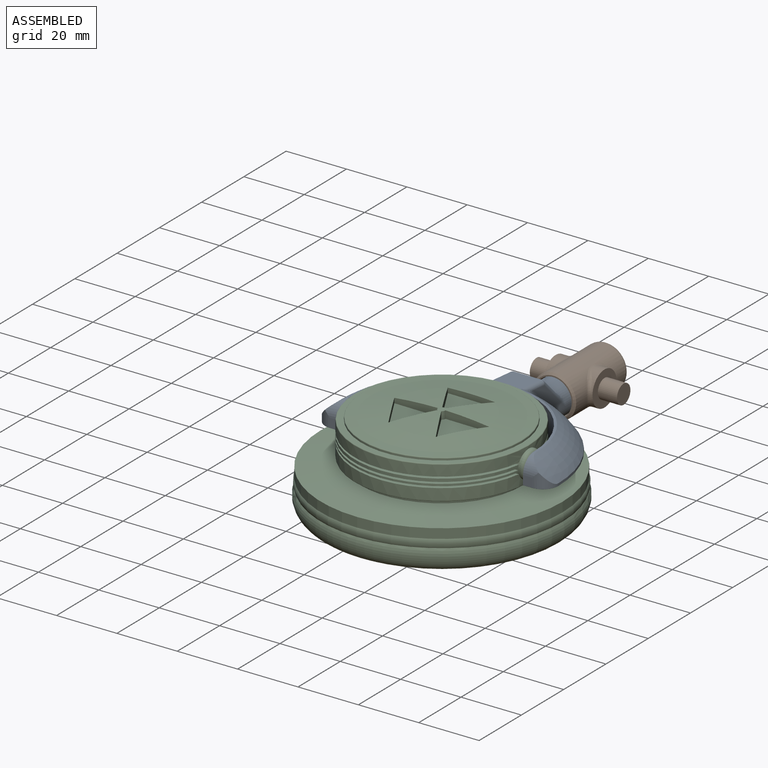
[diagram: assembled view]
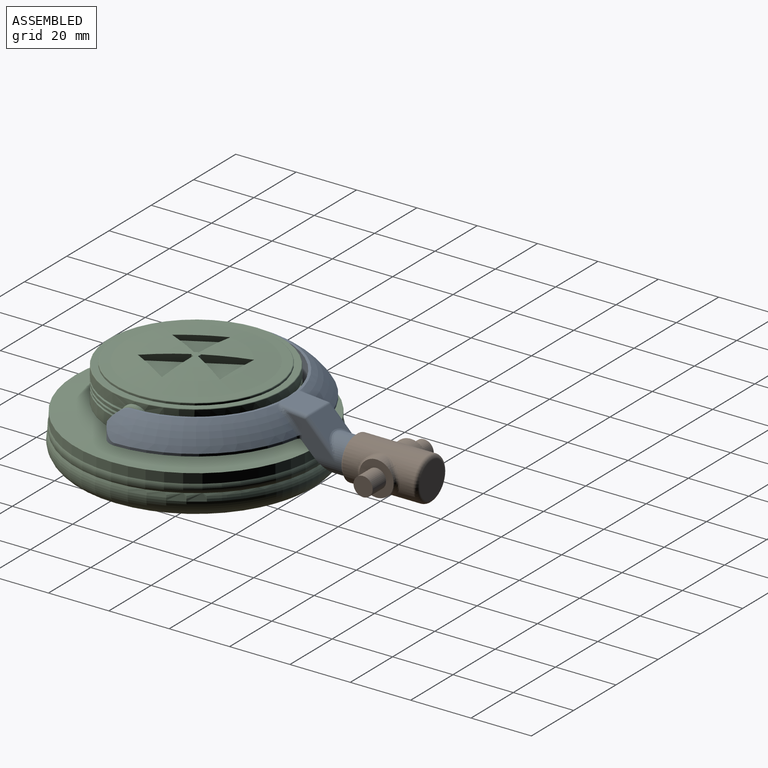
[diagram: assembled view, second angle]
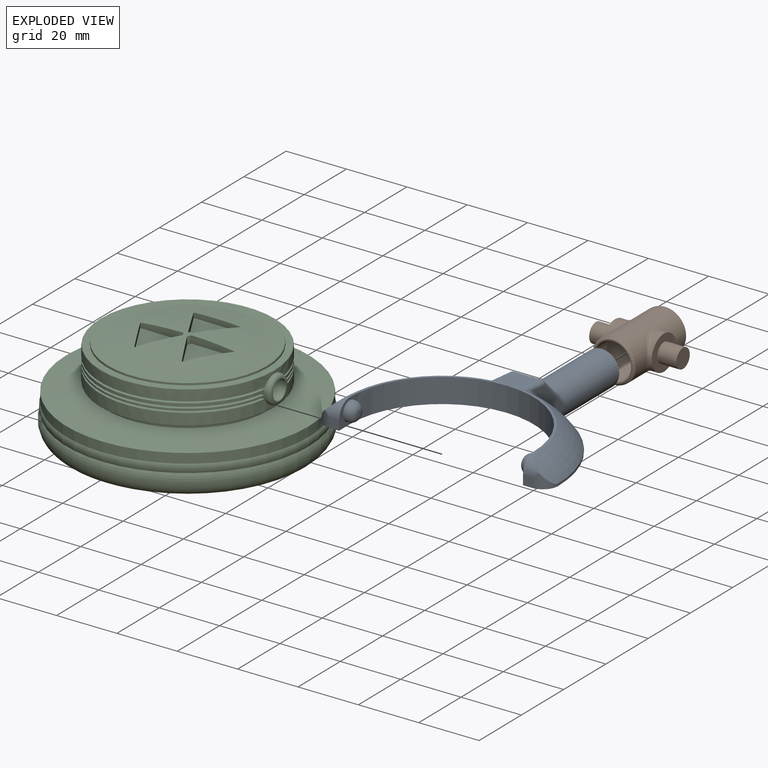
[diagram: exploded view]
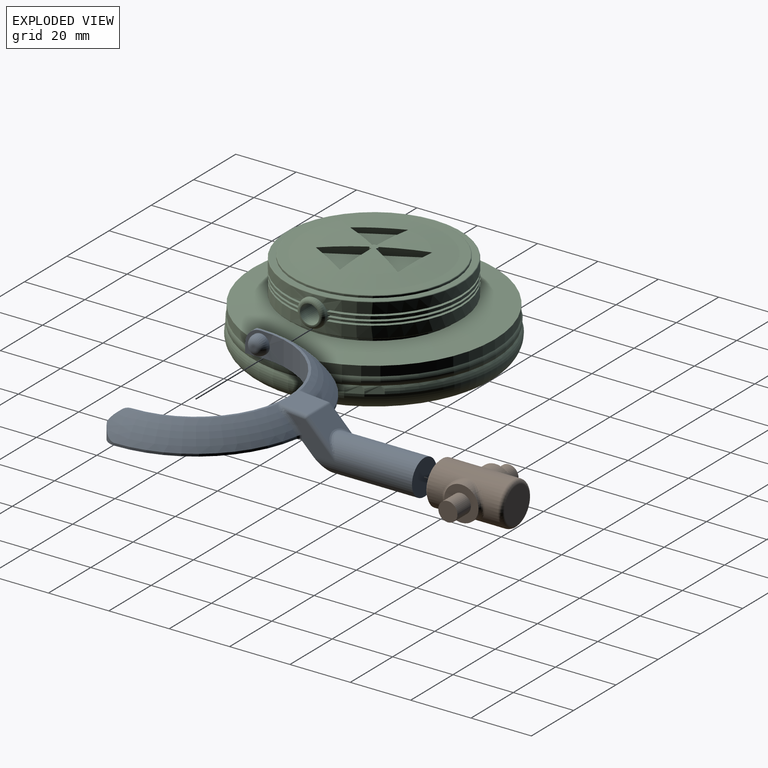
[diagram: exploded view, second angle]
ASSEMBLY  parts=3 mates=2
PART A: 48 faces, bbox 77.3x80.8x18.2 mm
  f0: plane 11.99x9.83mm, normal (0,-0.71,-0.71), area 141.5mm2, adj f1,f2,f9,f30,f43,f46
  f1: plane 15.39x10.49mm, normal (-1,0,0), area 63.5mm2, adj f0,f30,f32,f36,f46,f47
  f2: plane 15.39x10.49mm, normal (1,0,0), area 63.5mm2, adj f0,f30,f34,f39,f43,f44
  f3: plane 9.14x6.37mm, normal (0,0.71,0.71), area 67.6mm2, adj f35,f36,f39,f40
  f4: cylinder r=38.61mm len=37.99mm, axis (0,0,-1), area 42.6mm2, adj f6,f9,f17,f46,f47
  f5: torus R=19.3mm, axis (0,0,-1), area 507.8mm2, adj f10,f11,f12,f29,f42,f44
  f6: torus R=19.3mm, axis (0,0,-1), area 507.8mm2, adj f4,f11,f15,f28,f45,f47
  f7: cylinder r=30.48mm len=60.96mm, axis (0,0,-1), area 746.6mm2, adj f8,f9,f11,f14,f21,f24
  f8: plane 8.13x5.08mm, normal (-1,0,0), area 19.9mm2, adj f7,f9,f13,f19,f24
  f9: plane 77.22x43.73mm, normal (0,0,-1), area 956.2mm2, adj f0,f4,f7,f8,f10,f13,f14,f16
  f10: cylinder r=38.61mm len=37.99mm, axis (0,0,-1), area 42.6mm2, adj f5,f9,f20,f43,f44
  f11: plane 62.55x30.95mm, normal (0,0,1), area 75mm2, adj f5,f6,f7,f18,f19,f27
  f12: cylinder r=22.71mm len=7.33mm, axis (0,1,0), area 24.8mm2, adj f5,f19,f20
  f13: plane 3.05x3.05mm, normal (0,-1,0), area 9.3mm2, adj f8,f9,f19,f20
  f14: plane 8.13x5.08mm, normal (1,0,0), area 19.9mm2, adj f7,f9,f16,f18,f21
  f15: cylinder r=22.71mm len=7.33mm, axis (0,1,0), area 24.8mm2, adj f6,f17,f18
  f16: plane 3.05x3.05mm, normal (0,-1,0), area 9.3mm2, adj f9,f14,f17,f18
  f17: cylinder r=5.08mm len=5.08mm, axis (0,0,-1), area 21.9mm2, adj f4,f9,f15,f16,f18
  f18: cylinder r=5.08mm len=5.08mm, axis (-1,0,0), area 21.9mm2, adj f11,f14,f15,f16,f17
  f19: cylinder r=5.08mm len=5.08mm, axis (-1,0,0), area 21.9mm2, adj f8,f11,f12,f13,f20
  f20: cylinder r=5.08mm len=5.08mm, axis (0,0,-1), area 21.9mm2, adj f9,f10,f12,f13,f19
  f21: cylinder r=3.17mm len=6.35mm, axis (-1,0,0), area 12.7mm2, adj f7,f14,f23
  f22: plane 1.27x1.27mm, normal (1,0,0), area 1.3mm2, adj f23
  f23: torus R=0.64mm, axis (1,0,0), area 56.5mm2, adj f21,f22
  f24: cylinder r=3.17mm len=6.35mm, axis (1,0,0), area 12.7mm2, adj f7,f8,f26
  f25: plane 1.27x1.27mm, normal (-1,0,0), area 1.3mm2, adj f26
  f26: torus R=0.64mm, axis (-1,0,0), area 56.5mm2, adj f24,f25
  f27: plane 9.86x9.36mm, normal (0,0.09,1), area 85.6mm2, adj f11,f28,f29,f32,f34,f35,f42,f45
  f28: plane 1.04x0.17mm, normal (0,-1,0), area 0mm2, adj f6,f27,f45
  f29: plane 1.04x0.17mm, normal (0,-1,0), area 0mm2, adj f5,f27,f42
  f30: cylinder r=5.84mm len=33.01mm, axis (0,-1,0), area 1029.7mm2, adj f0,f1,f2,f31,f38,f40,f41
  f31: plane 11.68x11.68mm, normal (0,1,0), area 107.2mm2, adj f30
  f32: cylinder r=1.27mm len=9.13mm, axis (0,-1,0.09), area 14.4mm2, adj f1,f27,f33,f45
  f33: sphere r=1.27mm, area 1.5mm2, adj f32,f35,f36
  f34: cylinder r=1.27mm len=9.13mm, axis (0,1,-0.09), area 14.4mm2, adj f2,f27,f37,f42
  f35: cylinder r=1.27mm len=9.14mm, axis (-1,0,0), area 8.1mm2, adj f3,f27,f33,f37
  f36: cylinder r=1.27mm len=10.91mm, axis (0,-0.71,0.71), area 23.1mm2, adj f1,f3,f33,f38
  f37: sphere r=1.27mm, area 1.5mm2, adj f34,f35,f39
  f38: bspline ~4.55x2.75mm, area 2.3mm2, adj f30,f36,f40
  f39: cylinder r=1.27mm len=10.91mm, axis (0,0.71,-0.71), area 23.1mm2, adj f2,f3,f37,f41
  f40: bspline ~9.14x2.56mm, area 10.7mm2, adj f3,f30,f38,f41
  f41: bspline ~5.23x3.53mm, area 2.3mm2, adj f30,f39,f40
  f42: bspline ~4.62x3.14mm, area 5.2mm2, adj f5,f27,f29,f34,f44
  f43: cylinder r=1.27mm len=1.74mm, axis (0,0,-1), area 1.9mm2, adj f0,f2,f9,f10,f44
  f44: bspline ~8.6x7.86mm, area 11.9mm2, adj f2,f5,f10,f42,f43
  f45: bspline ~4.62x3.14mm, area 5.2mm2, adj f6,f27,f28,f32,f47
  f46: cylinder r=1.27mm len=1.74mm, axis (0,0,-1), area 1.9mm2, adj f0,f1,f4,f9,f47
  f47: bspline ~8.6x7.86mm, area 11.9mm2, adj f1,f4,f6,f45,f46
PART B: 25 faces, bbox 28.9x15.5x25.4 mm
  f0: cylinder r=5.71mm len=10.81mm, axis (-1,0,0), area 26.2mm2, adj f5,f15
  f1: cylinder r=5.71mm len=10.81mm, axis (-1,0,0), area 26.2mm2, adj f8,f11
  f2: cylinder r=7.14mm len=23.5mm, axis (0,0,-1), area 763.2mm2, adj f9,f10,f11,f12,f13,f14,f15,f16
  f3: plane 11.75x11.75mm, normal (0,0,1), area 108.4mm2, adj f17
  f4: plane 13.02x13.02mm, normal (0,0,-1), area 16.3mm2, adj f22,f24
  f5: plane 11.46x11.46mm, normal (1,0,0), area 70.9mm2, adj f0,f6,f13,f16,f18
  f6: cylinder r=5.71mm len=10.81mm, axis (-1,0,0), area 26.2mm2, adj f5,f14
  f7: cylinder r=5.71mm len=10.81mm, axis (-1,0,0), area 26.2mm2, adj f8,f10
  f8: plane 11.46x11.46mm, normal (-1,0,0), area 70.9mm2, adj f1,f7,f9,f12,f20
  f9: bspline ~4.64x1.73mm, area 6.5mm2, adj f2,f8,f10,f11
  f10: bspline ~13.62x4.91mm, area 20.7mm2, adj f2,f7,f9,f12
  f11: bspline ~13.6x4.87mm, area 20.7mm2, adj f1,f2,f9,f12
  f12: bspline ~4.64x1.73mm, area 6.5mm2, adj f2,f8,f10,f11
  f13: bspline ~4.64x1.73mm, area 6.5mm2, adj f2,f5,f14,f15
  f14: bspline ~13.62x4.91mm, area 20.7mm2, adj f2,f6,f13,f16
  f15: bspline ~13.6x4.87mm, area 20.7mm2, adj f0,f2,f13,f16
  f16: bspline ~4.64x1.73mm, area 6.5mm2, adj f2,f5,f14,f15
  f17: torus R=5.87mm, axis (0,0,1), area 83.8mm2, adj f2,f3
  f18: cylinder r=3.17mm len=6.35mm, axis (-1,0,0), area 126.7mm2, adj f5,f19
  f19: plane 6.35x6.35mm, normal (1,0,0), area 31.7mm2, adj f18
  f20: cylinder r=3.17mm len=6.35mm, axis (1,0,0), area 126.7mm2, adj f8,f21
  f21: plane 6.35x6.35mm, normal (-1,0,0), area 31.7mm2, adj f20
  f22: cylinder r=6.1mm len=22.86mm, axis (0,0,-1), area 875.6mm2, adj f4,f23
  f23: plane 12.19x12.19mm, normal (0,0,-1), area 116.7mm2, adj f22
  f24: cone r=7.14mm half-angle=45deg, axis (0,0,1), area 38.5mm2, adj f2,f4
PART C: 63 faces, bbox 96.3x96.3x32.5 mm
  f0: cylinder r=28.87mm len=57.73mm, axis (0,0,-1), area 629.2mm2, adj f3,f4,f53,f54,f59
  f1: plane 57.15x24.45mm, normal (0,0,-1), area 101.2mm2, adj f6,f8,f53,f54
  f2: plane 57.15x24.45mm, normal (0,0,-1), area 101.3mm2, adj f5,f7,f53,f54
  f3: plane 57.1x24.58mm, normal (0,0,1), area 101.9mm2, adj f0,f6,f53,f54
  f4: plane 57.1x24.58mm, normal (0,0,1), area 101.9mm2, adj f0,f5,f53,f54
  f5: cone r=27.6mm half-angle=0.2deg, axis (0,0,1), area 49.5mm2, adj f2,f4,f53,f54
  f6: cone r=27.6mm half-angle=0.2deg, axis (0,0,1), area 49.5mm2, adj f1,f3,f53,f54
  f7: cylinder r=28.87mm len=57.04mm, axis (0,0,-1), area 51.8mm2, adj f2,f14,f53,f54
  f8: cylinder r=28.87mm len=57.04mm, axis (0,0,-1), area 51.8mm2, adj f1,f13,f53,f54
  f9: cylinder r=27.6mm len=54.44mm, axis (0,0,-1), area 49.2mm2, adj f12,f14,f53,f54
  f10: cylinder r=27.6mm len=54.44mm, axis (0,0,-1), area 49.2mm2, adj f11,f13,f53,f54
  f11: plane 57.12x24.36mm, normal (0,0,-1), area 101mm2, adj f10,f16,f53,f54
  f12: plane 57.12x24.36mm, normal (0,0,-1), area 101mm2, adj f9,f15,f53,f54
  f13: plane 57.01x24.31mm, normal (0,0,1), area 101mm2, adj f8,f10,f53,f54
  f14: plane 57.02x24.31mm, normal (0,0,1), area 101mm2, adj f7,f9,f53,f54
  f15: cylinder r=28.87mm len=57.06mm, axis (0,0,-1), area 77.8mm2, adj f12,f20,f53,f54
  f16: cylinder r=28.87mm len=57.06mm, axis (0,0,-1), area 77.8mm2, adj f11,f19,f53,f54
  f17: plane 57.24x24.77mm, normal (0,0,-1), area 101.4mm2, adj f22,f23,f53,f54
  f18: plane 57.24x24.77mm, normal (0,0,-1), area 101.4mm2, adj f21,f23,f53,f54
  f19: plane 57.07x24.48mm, normal (0,0,1), area 101.4mm2, adj f16,f22,f53,f54
  f20: plane 57.07x24.48mm, normal (0,0,1), area 101.4mm2, adj f15,f21,f53,f54
  f21: cone r=27.61mm half-angle=0.6deg, axis (0,0,1), area 49.6mm2, adj f18,f20,f53,f54
  f22: cone r=27.61mm half-angle=0.6deg, axis (0,0,1), area 49.6mm2, adj f17,f19,f53,f54
  f23: cylinder r=28.87mm len=57.73mm, axis (0,0,-1), area 595.9mm2, adj f17,f18,f53,f54,f60
  f24: sphere r=135.39mm, area 1385.3mm2, adj f37,f38,f39,f40,f42,f43,f44,f45
  f25: plane 39.33x39.33mm, normal (0,0,-1), area 1214.6mm2, adj f26
  f26: torus R=20.12mm, axis (0,0,-1), area 1429.3mm2, adj f25,f27
  f27: torus R=27.74mm, axis (0,0,-1), area 3542.1mm2, adj f26,f28
  f28: torus R=35.36mm, axis (0,0,-1), area 2180.1mm2, adj f27,f29
  f29: torus R=37.35mm, axis (0,0,-1), area 734.6mm2, adj f28,f30
  f30: cylinder r=40.06mm len=80.11mm, axis (0,0,-1), area 799.1mm2, adj f29,f31
  f31: cone r=26.57mm half-angle=85deg, axis (0,0,-1), area 2833.8mm2, adj f30,f32
  f32: cylinder r=26.57mm len=53.14mm, axis (0,0,-1), area 265mm2, adj f31,f33
  f33: plane 57.23x57.23mm, normal (0,0,-1), area 354.5mm2, adj f32,f59
  f34: cone r=26.57mm half-angle=87deg, axis (0,0,-1), area 475.4mm2, adj f61,f62
  f35: cylinder r=26.57mm len=53.14mm, axis (0,0,-1), area 92.3mm2, adj f36,f61
  f36: plane 57.23x57.23mm, normal (0,0,1), area 354.5mm2, adj f35,f60
  f37: cylinder r=1.27mm len=2.53mm, axis (0,0,1), area 3.4mm2, adj f24,f38,f40,f41
  f38: plane 12.76x7.11mm, normal (0.87,0.49,0), area 32.2mm2, adj f24,f37,f39,f41
  f39: plane 13.62x8.15mm, normal (-0.86,0.51,0), area 28mm2, adj f24,f38,f40,f41
  f40: plane 14.6x2.53mm, normal (-0.02,-1,0), area 32.2mm2, adj f24,f37,f39,f41
  f41: plane 15.26x13.85mm, normal (0,0,1), area 108.3mm2, adj f37,f38,f39,f40
  f42: cylinder r=1.27mm len=2.53mm, axis (0,0,1), area 3.4mm2, adj f24,f43,f45,f46
  f43: plane 14.6x2.53mm, normal (-0.02,-1,0), area 32.2mm2, adj f24,f42,f44,f46
  f44: plane 13.87x7.72mm, normal (0.87,0.49,0), area 28mm2, adj f24,f43,f45,f46
  f45: plane 12.53x7.5mm, normal (-0.86,0.51,0), area 32.2mm2, adj f24,f42,f44,f46
  f46: plane 15.22x13.87mm, normal (0,0,1), area 108.3mm2, adj f42,f43,f44,f45
  f47: cylinder r=1.27mm len=2.53mm, axis (0,0,1), area 3.4mm2, adj f24,f48,f50,f51
  f48: plane 12.53x7.5mm, normal (-0.86,0.51,0), area 32.2mm2, adj f24,f47,f49,f51
  f49: plane 15.87x1.84mm, normal (-0.02,-1,0), area 28mm2, adj f24,f48,f50,f51
  f50: plane 12.76x7.11mm, normal (0.87,0.49,0), area 32.2mm2, adj f24,f47,f49,f51
  f51: plane 15.87x12.78mm, normal (0,0,1), area 108.3mm2, adj f47,f48,f49,f50
  f52: plane 6.6x6.6mm, normal (1,0,0), area 2.6mm2, adj f57,f58
  f53: cylinder r=4.57mm len=9.14mm, axis (-1,0,0), area 22mm2, adj f0,f1,f2,f3,f4,f5,f6,f7
  f54: cylinder r=4.57mm len=9.14mm, axis (-1,0,0), area 18.4mm2, adj f0,f1,f2,f3,f4,f5,f6,f7
  f55: plane 6.6x6.6mm, normal (-1,0,0), area 2.6mm2, adj f56,f58
  f56: torus R=3.3mm, axis (1,0,0), area 51.5mm2, adj f54,f55
  f57: torus R=3.3mm, axis (1,0,0), area 51.5mm2, adj f52,f53
  f58: cylinder r=3.17mm len=60.96mm, axis (1,0,0), area 1216.1mm2, adj f52,f55
  f59: torus R=28.61mm, axis (0,0,1), area 72.1mm2, adj f0,f33
  f60: torus R=28.61mm, axis (0,0,-1), area 72.1mm2, adj f23,f36
  f61: torus R=26.31mm, axis (0,0,1), area 64.2mm2, adj f34,f35
  f62: torus R=23.29mm, axis (0,0,1), area 4.5mm2, adj f24,f34
PLACE A t=(32.34,27.52,20.85)mm
PLACE B rot(axis=(-1,0,0),90deg) t=(32.34,80.3,16.88)mm
PLACE C t=(32.34,27.52,33.52)mm
MATE revolute A.f24 <-> C.f53  axis (-1,0,0) through (62.82,27.52,24.92)mm
MATE revolute B.f2 <-> A.f30  axis (0,-1,0) through (32.34,103.16,16.88)mm
